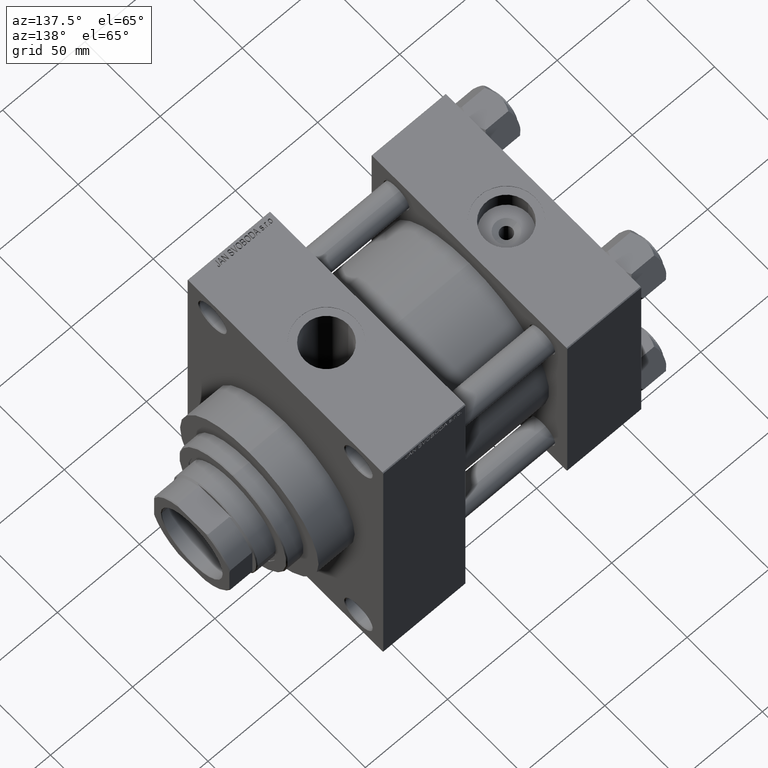
[diagram: clean part render]
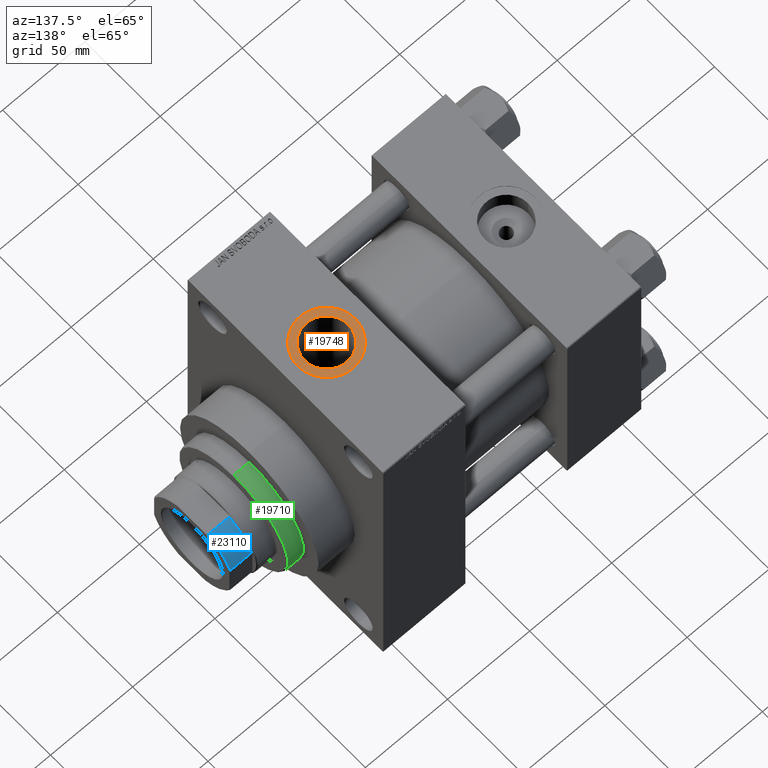
[diagram: same view with three faces highlighted in distinct colors, each labeled with its STEP entity id]
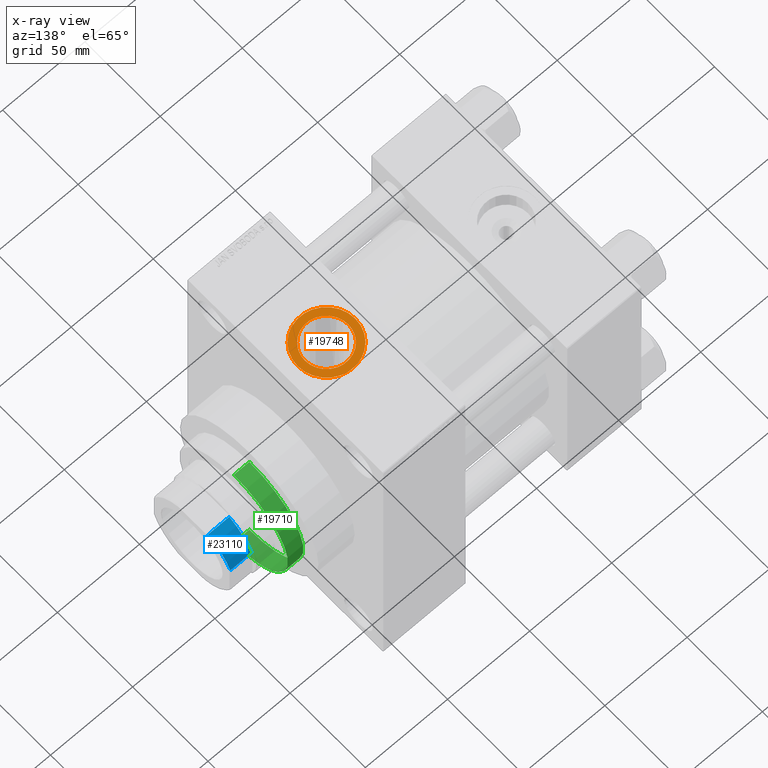
[diagram: x-ray of the same camera — body ghosted, the three highlighted faces saturated]
A machine part, auxiliary view with three faces highlighted in distinct colors.
The next image is the same camera in x-ray (body ghosted, the three faces saturated) — at least one of them is partly hidden behind the body in this view.
Their STEP definitions:

[orange] entity #19748 — the highlighted planar face has unit normal (0, 0, 1).
#272 = CARTESIAN_POINT ( 'NONE',  ( 149.5000000000000284, 0.000000000000000000, 94.79999999999996874 ) ) ;
#847 = EDGE_CURVE ( 'NONE', #18573, #41184, #16345, .T. ) ;
#4546 = FACE_OUTER_BOUND ( 'NONE', #13101, .T. ) ;
#6853 = ORIENTED_EDGE ( 'NONE', *, *, #847, .T. ) ;
#8655 = PLANE ( 'NONE',  #23079 ) ;
#9457 = AXIS2_PLACEMENT_3D ( 'NONE', #31619, #42705, #13739 ) ;
#11335 = CARTESIAN_POINT ( 'NONE',  ( 132.0000000000000000, 0.000000000000000000, 94.79999999999996874 ) ) ;
#11700 = EDGE_CURVE ( 'NONE', #41184, #18573, #36835, .T. ) ;
#11772 = CARTESIAN_POINT ( 'NONE',  ( 145.2200000000000273, 1.618983068472802926E-15, 94.79999999999996874 ) ) ;
#12705 = VERTEX_POINT ( 'NONE', #31387 ) ;
#13101 = EDGE_LOOP ( 'NONE', ( #38933, #6853 ) ) ;
#13739 = DIRECTION ( 'NONE',  ( 1.000000000000000000, 0.000000000000000000, 0.000000000000000000 ) ) ;
#15228 = DIRECTION ( 'NONE',  ( 0.000000000000000000, 0.000000000000000000, 1.000000000000000000 ) ) ;
#15860 = EDGE_LOOP ( 'NONE', ( #20596, #17733 ) ) ;
#16345 = CIRCLE ( 'NONE', #27917, 17.50000000000001421 ) ;
#17682 = CIRCLE ( 'NONE', #23057, 13.22000000000000952 ) ;
#17733 = ORIENTED_EDGE ( 'NONE', *, *, #18583, .T. ) ;
#18320 = DIRECTION ( 'NONE',  ( 0.000000000000000000, 0.000000000000000000, 1.000000000000000000 ) ) ;
#18573 = VERTEX_POINT ( 'NONE', #28279 ) ;
#18583 = EDGE_CURVE ( 'NONE', #21607, #12705, #17682, .T. ) ;
#19095 = CARTESIAN_POINT ( 'NONE',  ( 132.0000000000000000, 0.000000000000000000, 94.79999999999996874 ) ) ;
#19748 = ADVANCED_FACE ( 'NONE', ( #41027, #4546 ), #8655, .T. ) ;
#20596 = ORIENTED_EDGE ( 'NONE', *, *, #26811, .T. ) ;
#21607 = VERTEX_POINT ( 'NONE', #11772 ) ;
#21949 = CARTESIAN_POINT ( 'NONE',  ( 132.0000000000000000, 0.000000000000000000, 94.79999999999996874 ) ) ;
#23057 = AXIS2_PLACEMENT_3D ( 'NONE', #31664, #25144, #24410 ) ;
#23079 = AXIS2_PLACEMENT_3D ( 'NONE', #11335, #23396, #44879 ) ;
#23396 = DIRECTION ( 'NONE',  ( 0.000000000000000000, 0.000000000000000000, 1.000000000000000000 ) ) ;
#24410 = DIRECTION ( 'NONE',  ( 1.000000000000000000, 0.000000000000000000, 0.000000000000000000 ) ) ;
#25144 = DIRECTION ( 'NONE',  ( -0.000000000000000000, -0.000000000000000000, -1.000000000000000000 ) ) ;
#26811 = EDGE_CURVE ( 'NONE', #12705, #21607, #40307, .T. ) ;
#27917 = AXIS2_PLACEMENT_3D ( 'NONE', #21949, #18320, #29435 ) ;
#28279 = CARTESIAN_POINT ( 'NONE',  ( 114.4999999999999858, 2.143131898507871404E-15, 94.79999999999996874 ) ) ;
#29435 = DIRECTION ( 'NONE',  ( 1.000000000000000000, 0.000000000000000000, 0.000000000000000000 ) ) ;
#31387 = CARTESIAN_POINT ( 'NONE',  ( 118.7800000000000011, 0.000000000000000000, 94.79999999999996874 ) ) ;
#31619 = CARTESIAN_POINT ( 'NONE',  ( 132.0000000000000000, 0.000000000000000000, 94.79999999999996874 ) ) ;
#31664 = CARTESIAN_POINT ( 'NONE',  ( 132.0000000000000000, 0.000000000000000000, 94.79999999999996874 ) ) ;
#36835 = CIRCLE ( 'NONE', #39937, 17.50000000000001421 ) ;
#38933 = ORIENTED_EDGE ( 'NONE', *, *, #11700, .T. ) ;
#39937 = AXIS2_PLACEMENT_3D ( 'NONE', #19095, #15228, #40825 ) ;
#40307 = CIRCLE ( 'NONE', #9457, 13.22000000000000952 ) ;
#40825 = DIRECTION ( 'NONE',  ( 1.000000000000000000, 0.000000000000000000, 0.000000000000000000 ) ) ;
#41027 = FACE_BOUND ( 'NONE', #15860, .T. ) ;
#41184 = VERTEX_POINT ( 'NONE', #272 ) ;
#42705 = DIRECTION ( 'NONE',  ( -0.000000000000000000, -0.000000000000000000, -1.000000000000000000 ) ) ;
#44879 = DIRECTION ( 'NONE',  ( 1.000000000000000000, 0.000000000000000000, -0.000000000000000000 ) ) ;

[blue] entity #23110 — the highlighted cylindrical surface (partial cylindrical patch) has radius 27 mm, axis along (1, 0, 0).
#177 = VERTEX_POINT ( 'NONE', #777 ) ;
#777 = CARTESIAN_POINT ( 'NONE',  ( -25.00000000000000000, -10.19803902718555300, 155.5000000000000853 ) ) ;
#2534 = ORIENTED_EDGE ( 'NONE', *, *, #42286, .T. ) ;
#3916 = EDGE_CURVE ( 'NONE', #33639, #34548, #29643, .T. ) ;
#5346 = DIRECTION ( 'NONE',  ( -0.000000000000000000, -0.000000000000000000, 1.000000000000000000 ) ) ;
#5577 = DIRECTION ( 'NONE',  ( -1.000000000000000000, 0.000000000000000000, 0.000000000000000000 ) ) ;
#6091 = ORIENTED_EDGE ( 'NONE', *, *, #20999, .T. ) ;
#7685 = DIRECTION ( 'NONE',  ( -0.000000000000000000, -0.000000000000000000, 1.000000000000000000 ) ) ;
#9788 = CYLINDRICAL_SURFACE ( 'NONE', #17044, 26.99999999999999645 ) ;
#11962 = EDGE_CURVE ( 'NONE', #177, #14041, #18804, .T. ) ;
#11980 = CARTESIAN_POINT ( 'NONE',  ( -10.19803902718555655, -25.00000000000000000, -0.001000000000001000089 ) ) ;
#12366 = CIRCLE ( 'NONE', #42434, 26.99999999999999645 ) ;
#12481 = CARTESIAN_POINT ( 'NONE',  ( 0.000000000000000000, 0.000000000000000000, 168.5000000000000000 ) ) ;
#12946 = CARTESIAN_POINT ( 'NONE',  ( 0.000000000000000000, 0.000000000000000000, -0.001000000000001000089 ) ) ;
#13877 = ORIENTED_EDGE ( 'NONE', *, *, #11962, .F. ) ;
#14041 = VERTEX_POINT ( 'NONE', #33209 ) ;
#17044 = AXIS2_PLACEMENT_3D ( 'NONE', #12946, #28642, #42392 ) ;
#18804 = LINE ( 'NONE', #44616, #33774 ) ;
#20548 = CARTESIAN_POINT ( 'NONE',  ( 0.000000000000000000, 0.000000000000000000, 155.5000000000000853 ) ) ;
#20999 = EDGE_CURVE ( 'NONE', #34548, #14041, #12366, .T. ) ;
#21480 = AXIS2_PLACEMENT_3D ( 'NONE', #20548, #5346, #5577 ) ;
#23110 = ADVANCED_FACE ( 'NONE', ( #25008 ), #9788, .T. ) ;
#23781 = CIRCLE ( 'NONE', #21480, 26.99999999999999645 ) ;
#25008 = FACE_OUTER_BOUND ( 'NONE', #38045, .T. ) ;
#28642 = DIRECTION ( 'NONE',  ( -0.000000000000000000, -0.000000000000000000, 1.000000000000000000 ) ) ;
#29643 = LINE ( 'NONE', #11980, #39572 ) ;
#29868 = DIRECTION ( 'NONE',  ( -0.000000000000000000, -0.000000000000000000, 1.000000000000000000 ) ) ;
#30933 = CARTESIAN_POINT ( 'NONE',  ( -10.19803902718555655, -25.00000000000000000, 168.5000000000000000 ) ) ;
#33209 = CARTESIAN_POINT ( 'NONE',  ( -25.00000000000000000, -10.19803902718555300, 168.5000000000000000 ) ) ;
#33639 = VERTEX_POINT ( 'NONE', #46107 ) ;
#33774 = VECTOR ( 'NONE', #7685, 1000.000000000000000 ) ;
#34548 = VERTEX_POINT ( 'NONE', #30933 ) ;
#38045 = EDGE_LOOP ( 'NONE', ( #45068, #6091, #13877, #2534 ) ) ;
#38300 = DIRECTION ( 'NONE',  ( -0.000000000000000000, -0.000000000000000000, -1.000000000000000000 ) ) ;
#39572 = VECTOR ( 'NONE', #29868, 1000.000000000000000 ) ;
#41923 = DIRECTION ( 'NONE',  ( 1.000000000000000000, 8.881784197001252323E-16, 0.000000000000000000 ) ) ;
#42286 = EDGE_CURVE ( 'NONE', #177, #33639, #23781, .T. ) ;
#42392 = DIRECTION ( 'NONE',  ( 1.000000000000000000, 0.000000000000000000, 0.000000000000000000 ) ) ;
#42434 = AXIS2_PLACEMENT_3D ( 'NONE', #12481, #38300, #41923 ) ;
#44616 = CARTESIAN_POINT ( 'NONE',  ( -25.00000000000000000, -10.19803902718555300, -0.001000000000001000089 ) ) ;
#45068 = ORIENTED_EDGE ( 'NONE', *, *, #3916, .T. ) ;
#46107 = CARTESIAN_POINT ( 'NONE',  ( -10.19803902718555655, -25.00000000000000000, 155.5000000000000853 ) ) ;

[green] entity #19710 — the highlighted cylindrical surface (partial cylindrical patch) has radius 36 mm, axis along (-1, 0, 0).
#456 = CYLINDRICAL_SURFACE ( 'NONE', #43893, 36.00000000000000000 ) ;
#2253 = ORIENTED_EDGE ( 'NONE', *, *, #24192, .F. ) ;
#2429 = EDGE_CURVE ( 'NONE', #41957, #45306, #35649, .T. ) ;
#3332 = VERTEX_POINT ( 'NONE', #10678 ) ;
#4292 = CARTESIAN_POINT ( 'NONE',  ( 0.000000000000000000, 0.000000000000000000, 52.76000000000001933 ) ) ;
#4909 = CARTESIAN_POINT ( 'NONE',  ( 36.00000000000000000, 4.408728476930470856E-15, 43.25999999999999801 ) ) ;
#5397 = VECTOR ( 'NONE', #37414, 1000.000000000000000 ) ;
#8090 = CARTESIAN_POINT ( 'NONE',  ( 36.00000000000000000, 4.408728476930470856E-15, 53.26000000000000512 ) ) ;
#9772 = CARTESIAN_POINT ( 'NONE',  ( 0.000000000000000000, 0.000000000000000000, 43.25999999999999801 ) ) ;
#10678 = CARTESIAN_POINT ( 'NONE',  ( -36.00000000000000000, 0.000000000000000000, 43.25999999999999801 ) ) ;
#11828 = CARTESIAN_POINT ( 'NONE',  ( -36.00000000000000000, 0.000000000000000000, 53.26000000000000512 ) ) ;
#13357 = AXIS2_PLACEMENT_3D ( 'NONE', #9772, #24508, #14605 ) ;
#13872 = ORIENTED_EDGE ( 'NONE', *, *, #17666, .T. ) ;
#14605 = DIRECTION ( 'NONE',  ( 1.000000000000000000, 0.000000000000000000, 0.000000000000000000 ) ) ;
#15205 = LINE ( 'NONE', #11828, #5397 ) ;
#15672 = DIRECTION ( 'NONE',  ( -0.000000000000000000, -0.000000000000000000, -1.000000000000000000 ) ) ;
#15902 = FACE_OUTER_BOUND ( 'NONE', #21833, .T. ) ;
#17439 = DIRECTION ( 'NONE',  ( 0.000000000000000000, 0.000000000000000000, -1.000000000000000000 ) ) ;
#17666 = EDGE_CURVE ( 'NONE', #45306, #3332, #15205, .T. ) ;
#18292 = CARTESIAN_POINT ( 'NONE',  ( -36.00000000000000000, 0.000000000000000000, 52.76000000000001933 ) ) ;
#19119 = ORIENTED_EDGE ( 'NONE', *, *, #2429, .T. ) ;
#19710 = ADVANCED_FACE ( 'NONE', ( #15902 ), #456, .T. ) ;
#20070 = VERTEX_POINT ( 'NONE', #4909 ) ;
#21054 = CIRCLE ( 'NONE', #13357, 36.00000000000000000 ) ;
#21833 = EDGE_LOOP ( 'NONE', ( #2253, #19119, #13872, #27785 ) ) ;
#22916 = CARTESIAN_POINT ( 'NONE',  ( 0.000000000000000000, 0.000000000000000000, 53.26000000000000512 ) ) ;
#23337 = AXIS2_PLACEMENT_3D ( 'NONE', #4292, #17439, #32159 ) ;
#23771 = LINE ( 'NONE', #8090, #29400 ) ;
#24192 = EDGE_CURVE ( 'NONE', #41957, #20070, #23771, .T. ) ;
#24508 = DIRECTION ( 'NONE',  ( 0.000000000000000000, 0.000000000000000000, 1.000000000000000000 ) ) ;
#27007 = DIRECTION ( 'NONE',  ( -1.000000000000000000, 0.000000000000000000, 0.000000000000000000 ) ) ;
#27396 = DIRECTION ( 'NONE',  ( -0.000000000000000000, -0.000000000000000000, -1.000000000000000000 ) ) ;
#27785 = ORIENTED_EDGE ( 'NONE', *, *, #28119, .T. ) ;
#28119 = EDGE_CURVE ( 'NONE', #3332, #20070, #21054, .T. ) ;
#29400 = VECTOR ( 'NONE', #27396, 1000.000000000000000 ) ;
#32159 = DIRECTION ( 'NONE',  ( 1.000000000000000000, 0.000000000000000000, 0.000000000000000000 ) ) ;
#32253 = CARTESIAN_POINT ( 'NONE',  ( 36.00000000000000000, 4.408728476930470856E-15, 52.76000000000001933 ) ) ;
#35649 = CIRCLE ( 'NONE', #23337, 36.00000000000000000 ) ;
#37414 = DIRECTION ( 'NONE',  ( -0.000000000000000000, -0.000000000000000000, -1.000000000000000000 ) ) ;
#41957 = VERTEX_POINT ( 'NONE', #32253 ) ;
#43893 = AXIS2_PLACEMENT_3D ( 'NONE', #22916, #15672, #27007 ) ;
#45306 = VERTEX_POINT ( 'NONE', #18292 ) ;